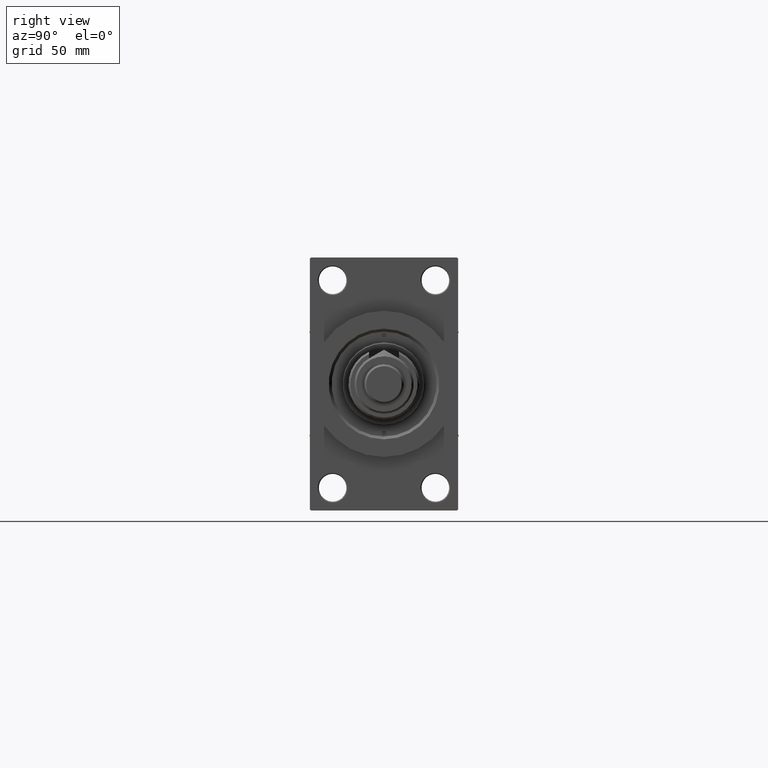
[diagram: clean part render]
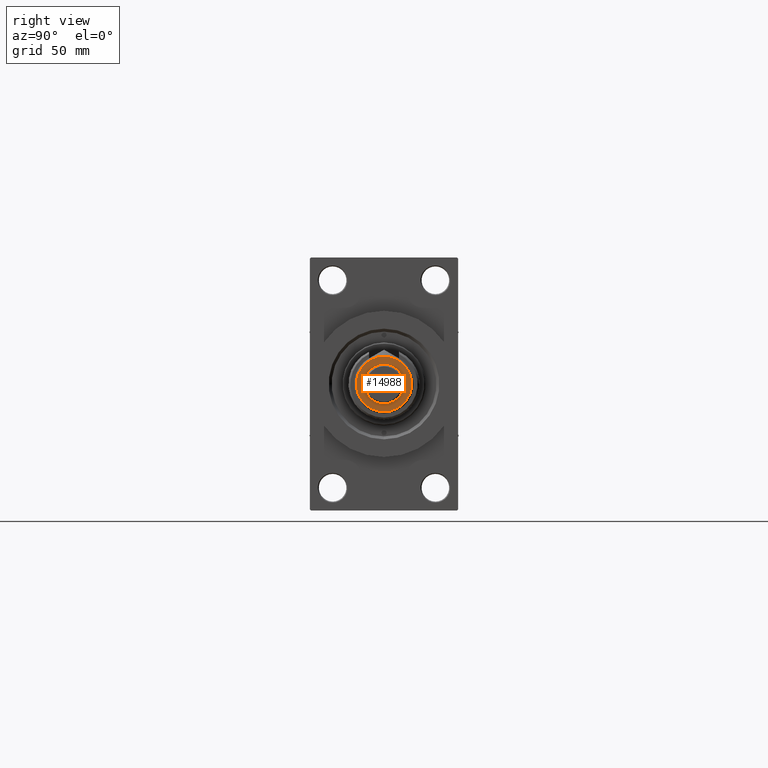
[diagram: same view with one face highlighted and labeled with its STEP entity id]
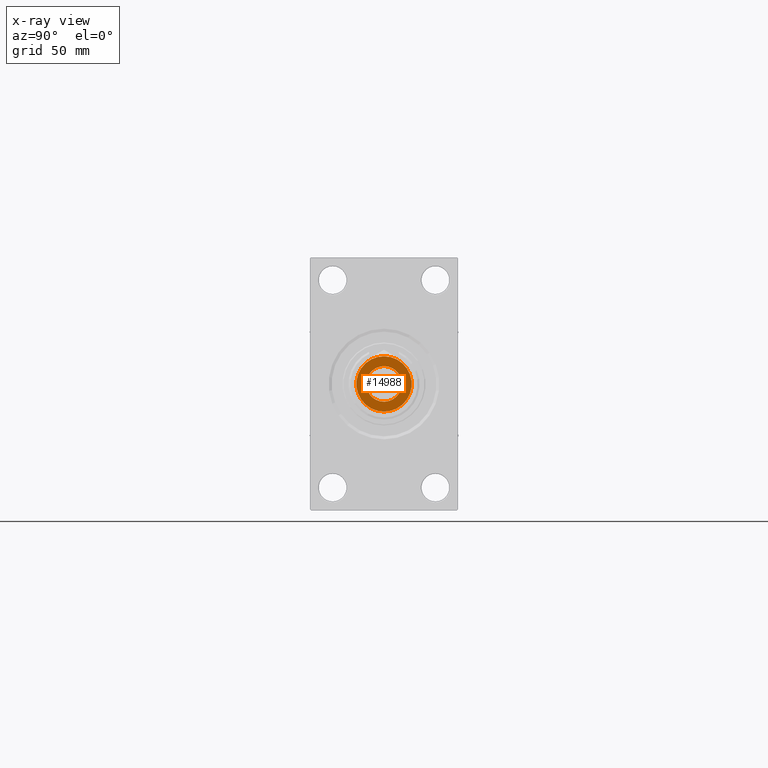
[diagram: x-ray of the same camera — body ghosted, the highlighted face saturated]
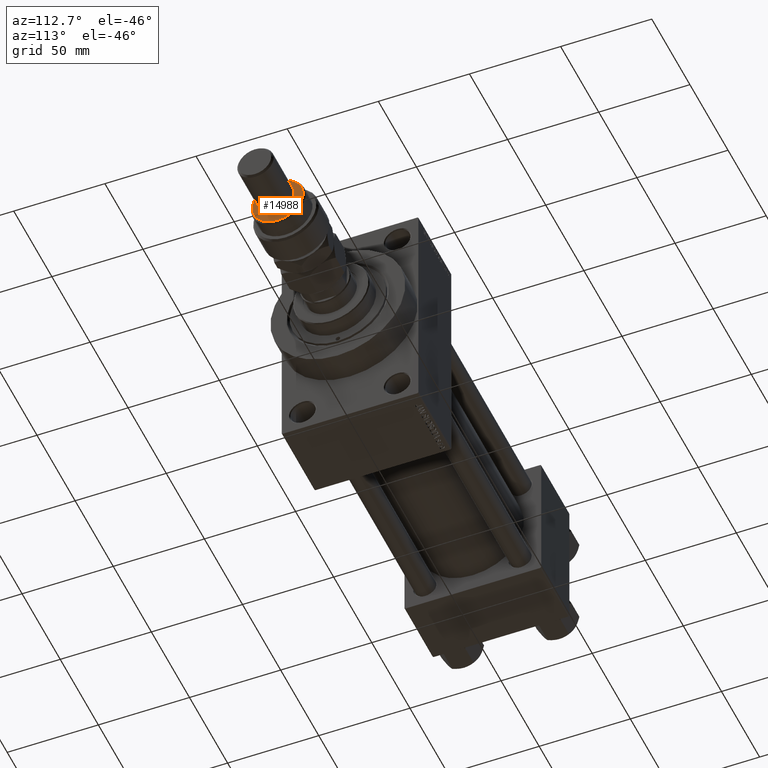
[diagram: same view with one face highlighted and labeled with its STEP entity id]
A machine part, right view. The second image highlights one B-rep face of the part: STEP entity #14988.
The next image is the same camera in x-ray: the body ghosted, the highlighted face saturated — about 0% of this face is hidden behind the body in this view.
A second angle (auxiliary view) of the same face is appended — the face is thin or edge-on in the first view.
In plain terms, the highlighted planar face has unit normal (1, 0, 0).
Its self-contained STEP definition (entity closure, byte-faithful):
#531 = FACE_OUTER_BOUND ( 'NONE', #45023, .T. ) ;
#4027 = CARTESIAN_POINT ( 'NONE',  ( 0.000000000000000000, 0.000000000000000000, 26.00000000000000355 ) ) ;
#4781 = DIRECTION ( 'NONE',  ( 0.000000000000000000, 0.000000000000000000, 1.000000000000000000 ) ) ;
#5079 = EDGE_CURVE ( 'NONE', #10975, #39895, #43079, .T. ) ;
#5801 = EDGE_CURVE ( 'NONE', #8414, #12296, #35026, .T. ) ;
#6859 = CARTESIAN_POINT ( 'NONE',  ( 0.000000000000000000, 0.000000000000000000, 26.00000000000000355 ) ) ;
#8090 = CARTESIAN_POINT ( 'NONE',  ( 0.000000000000000000, 0.000000000000000000, 26.00000000000000355 ) ) ;
#8166 = PLANE ( 'NONE',  #12997 ) ;
#8414 = VERTEX_POINT ( 'NONE', #48906 ) ;
#9052 = AXIS2_PLACEMENT_3D ( 'NONE', #6859, #26435, #22378 ) ;
#10975 = VERTEX_POINT ( 'NONE', #15742 ) ;
#12296 = VERTEX_POINT ( 'NONE', #46215 ) ;
#12340 = AXIS2_PLACEMENT_3D ( 'NONE', #4027, #4781, #19812 ) ;
#12466 = FACE_BOUND ( 'NONE', #46311, .T. ) ;
#12971 = CARTESIAN_POINT ( 'NONE',  ( 0.000000000000000000, 0.000000000000000000, 26.00000000000000355 ) ) ;
#12997 = AXIS2_PLACEMENT_3D ( 'NONE', #12971, #27747, #23685 ) ;
#14988 = ADVANCED_FACE ( 'NONE', ( #531, #12466 ), #8166, .T. ) ;
#15742 = CARTESIAN_POINT ( 'NONE',  ( 13.99999999999997513, 1.775737858763660437E-15, 26.00000000000000355 ) ) ;
#16979 = DIRECTION ( 'NONE',  ( 1.000000000000000000, 0.000000000000000000, 0.000000000000000000 ) ) ;
#18510 = AXIS2_PLACEMENT_3D ( 'NONE', #49376, #21970, #49636 ) ;
#19812 = DIRECTION ( 'NONE',  ( 1.000000000000000000, 0.000000000000000000, 0.000000000000000000 ) ) ;
#21197 = AXIS2_PLACEMENT_3D ( 'NONE', #8090, #42653, #16979 ) ;
#21970 = DIRECTION ( 'NONE',  ( 0.000000000000000000, 0.000000000000000000, 1.000000000000000000 ) ) ;
#22378 = DIRECTION ( 'NONE',  ( 1.000000000000000000, 0.000000000000000000, 0.000000000000000000 ) ) ;
#23179 = EDGE_CURVE ( 'NONE', #39895, #10975, #34269, .T. ) ;
#23685 = DIRECTION ( 'NONE',  ( 1.000000000000000000, 0.000000000000000000, -0.000000000000000000 ) ) ;
#26435 = DIRECTION ( 'NONE',  ( 0.000000000000000000, 0.000000000000000000, 1.000000000000000000 ) ) ;
#27747 = DIRECTION ( 'NONE',  ( 0.000000000000000000, 0.000000000000000000, 1.000000000000000000 ) ) ;
#30767 = ORIENTED_EDGE ( 'NONE', *, *, #5079, .T. ) ;
#30878 = ORIENTED_EDGE ( 'NONE', *, *, #44769, .F. ) ;
#33911 = CIRCLE ( 'NONE', #18510, 9.000000000000000000 ) ;
#34269 = CIRCLE ( 'NONE', #12340, 13.99999999999997513 ) ;
#35026 = CIRCLE ( 'NONE', #9052, 9.000000000000000000 ) ;
#37454 = CARTESIAN_POINT ( 'NONE',  ( -13.99999999999997513, 0.000000000000000000, 26.00000000000000355 ) ) ;
#39895 = VERTEX_POINT ( 'NONE', #37454 ) ;
#42653 = DIRECTION ( 'NONE',  ( 0.000000000000000000, 0.000000000000000000, 1.000000000000000000 ) ) ;
#43079 = CIRCLE ( 'NONE', #21197, 13.99999999999997513 ) ;
#44769 = EDGE_CURVE ( 'NONE', #12296, #8414, #33911, .T. ) ;
#45023 = EDGE_LOOP ( 'NONE', ( #47149, #30767 ) ) ;
#46215 = CARTESIAN_POINT ( 'NONE',  ( 9.000000000000000000, 1.102182119232617714E-15, 26.00000000000000355 ) ) ;
#46311 = EDGE_LOOP ( 'NONE', ( #49304, #30878 ) ) ;
#47149 = ORIENTED_EDGE ( 'NONE', *, *, #23179, .T. ) ;
#48906 = CARTESIAN_POINT ( 'NONE',  ( -9.000000000000000000, 0.000000000000000000, 26.00000000000000355 ) ) ;
#49304 = ORIENTED_EDGE ( 'NONE', *, *, #5801, .F. ) ;
#49376 = CARTESIAN_POINT ( 'NONE',  ( 0.000000000000000000, 0.000000000000000000, 26.00000000000000355 ) ) ;
#49636 = DIRECTION ( 'NONE',  ( 1.000000000000000000, 0.000000000000000000, 0.000000000000000000 ) ) ;